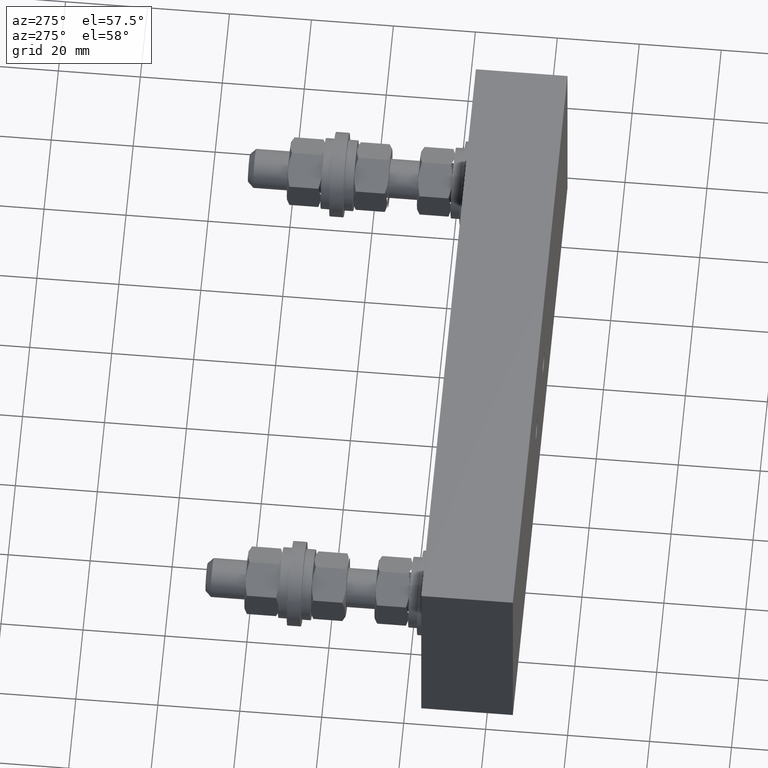
[diagram: clean part render]
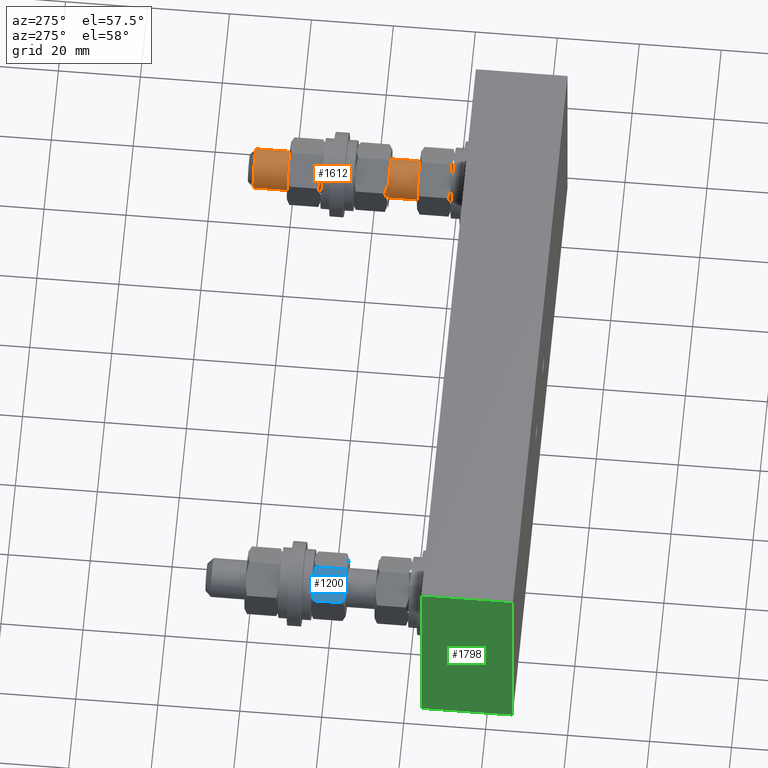
[diagram: same view with three faces highlighted in distinct colors, each labeled with its STEP entity id]
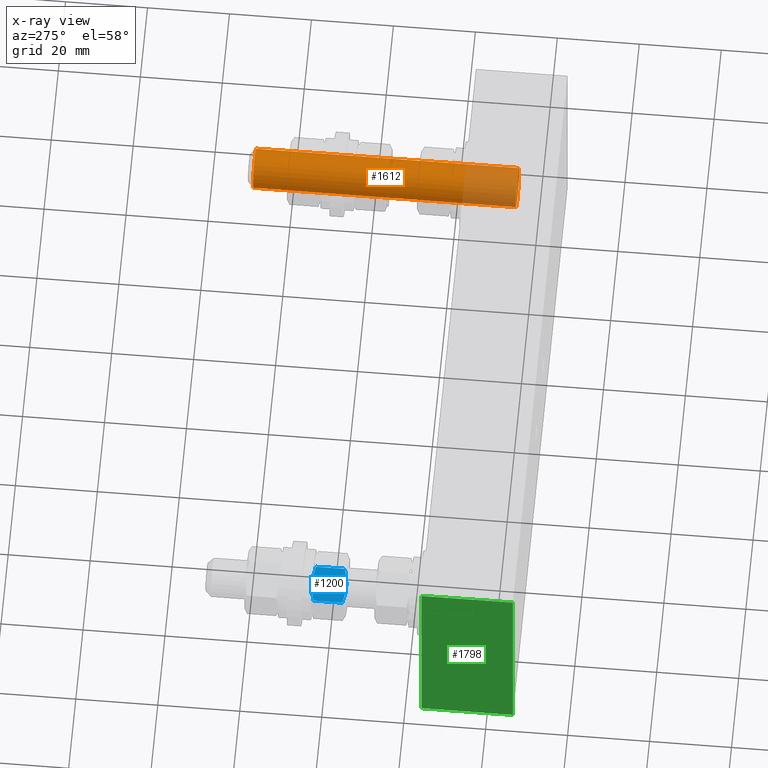
[diagram: x-ray of the same camera — body ghosted, the three highlighted faces saturated]
A machine part, auxiliary view with three faces highlighted in distinct colors.
The next image is the same camera in x-ray (body ghosted, the three faces saturated) — at least one of them is partly hidden behind the body in this view.
Their STEP definitions:

[orange] entity #1612 — the highlighted cylindrical surface (bore or boss wall) has radius 4.7625 mm, axis along (-0, -1, -0).
#124 = EDGE_LOOP ( 'NONE', ( #1744 ) ) ;
#411 = VERTEX_POINT ( 'NONE', #559 ) ;
#548 = EDGE_LOOP ( 'NONE', ( #2873 ) ) ;
#559 = CARTESIAN_POINT ( 'NONE',  ( 4.847500000000000100, 0.3318750000000001400, 1.040834085585814900E-017 ) ) ;
#607 = DIRECTION ( 'NONE',  ( 0.0000000000000000000, 0.0000000000000000000, -1.000000000000000000 ) ) ;
#1430 = DIRECTION ( 'NONE',  ( 9.678129627427201900E-031, 1.000000000000000000, 7.805279981897436400E-017 ) ) ;
#1612 = ADVANCED_FACE ( 'NONE', ( #6040, #7421 ), #6675, .T. ) ;
#1707 = CARTESIAN_POINT ( 'NONE',  ( 4.660000000000000100, 0.3318750000000001400, -2.693434729919641800E-030 ) ) ;
#1744 = ORIENTED_EDGE ( 'NONE', *, *, #3795, .F. ) ;
#2062 = DIRECTION ( 'NONE',  ( -9.678129627427203600E-031, -1.000000000000000000, -7.805279981897446200E-017 ) ) ;
#2247 = CIRCLE ( 'NONE', #4978, 0.1875000000000001400 ) ;
#2325 = DIRECTION ( 'NONE',  ( 1.000000000000000000, 0.0000000000000000000, 5.551115123125780200E-017 ) ) ;
#2477 = CARTESIAN_POINT ( 'NONE',  ( 4.660000000000000100, -2.238124999999999300, 3.414809992081220800E-017 ) ) ;
#2873 = ORIENTED_EDGE ( 'NONE', *, *, #4111, .T. ) ;
#3390 = VERTEX_POINT ( 'NONE', #5350 ) ;
#3445 = CIRCLE ( 'NONE', #4875, 0.1875000000000001100 ) ;
#3795 = EDGE_CURVE ( 'NONE', #411, #411, #3445, .T. ) ;
#4074 = AXIS2_PLACEMENT_3D ( 'NONE', #2477, #2062, #607 ) ;
#4111 = EDGE_CURVE ( 'NONE', #3390, #3390, #2247, .T. ) ;
#4875 = AXIS2_PLACEMENT_3D ( 'NONE', #1707, #5924, #2325 ) ;
#4978 = AXIS2_PLACEMENT_3D ( 'NONE', #4993, #1430, #5623 ) ;
#4993 = CARTESIAN_POINT ( 'NONE',  ( 4.660000000000000100, -2.191249999999999700, 3.780682491232658700E-017 ) ) ;
#5350 = CARTESIAN_POINT ( 'NONE',  ( 4.660000000000000100, -2.191249999999999700, -0.1875000000000001100 ) ) ;
#5623 = DIRECTION ( 'NONE',  ( 0.0000000000000000000, 0.0000000000000000000, -1.000000000000000000 ) ) ;
#5924 = DIRECTION ( 'NONE',  ( 9.721457635174948600E-031, 1.000000000000000000, -4.518854475494579400E-030 ) ) ;
#6040 = FACE_OUTER_BOUND ( 'NONE', #548, .T. ) ;
#6675 = CYLINDRICAL_SURFACE ( 'NONE', #4074, 0.1875000000000001400 ) ;
#7421 = FACE_OUTER_BOUND ( 'NONE', #124, .T. ) ;

[blue] entity #1200 — the highlighted planar face has unit normal (-0.5, -0, 0.866).
#163 = CARTESIAN_POINT ( 'NONE',  ( -0.2812499999999997800, -0.9411297632095829700, 0.1623797632095792500 ) ) ;
#181 = CARTESIAN_POINT ( 'NONE',  ( -0.1645473067611188400, -0.6387187491707515500, 0.2297580945662024100 ) ) ;
#301 = VERTEX_POINT ( 'NONE', #4364 ) ;
#337 = CARTESIAN_POINT ( 'NONE',  ( -0.09298809800177106100, -0.9633585106434163800, 0.2710728230064072300 ) ) ;
#412 = DIRECTION ( 'NONE',  ( 0.0000000000000000000, -1.000000000000000000, -3.491481338843133000E-015 ) ) ;
#446 = VECTOR ( 'NONE', #782, 39.37007874015748100 ) ;
#469 = CARTESIAN_POINT ( 'NONE',  ( -0.1166666464239665600, -0.6381250000000008300, 0.2574020067008344100 ) ) ;
#570 = CARTESIAN_POINT ( 'NONE',  ( -0.1406249999999998600, -0.6381250000000007200, 0.2435696448143713200 ) ) ;
#665 = EDGE_CURVE ( 'NONE', #4097, #2707, #3061, .T. ) ;
#782 = DIRECTION ( 'NONE',  ( 0.0000000000000000000, -1.000000000000000000, -3.491481338843133000E-015 ) ) ;
#789 = CARTESIAN_POINT ( 'NONE',  ( -0.1645833535760332900, -0.9662500000000009400, 0.2297372829279070200 ) ) ;
#806 = CARTESIAN_POINT ( 'NONE',  ( -0.2000398838390498000, -0.6427182716134752800, 0.2092664456360254800 ) ) ;
#934 = EDGE_CURVE ( 'NONE', #2457, #301, #7236, .T. ) ;
#941 = CARTESIAN_POINT ( 'NONE',  ( -0.04608535767091842500, -0.9550931338613537500, 0.2981521327621561900 ) ) ;
#1027 = DIRECTION ( 'NONE',  ( -0.4999999999999994400, -3.023711536277458200E-015, 0.8660254037844390400 ) ) ;
#1072 = CARTESIAN_POINT ( 'NONE',  ( -0.1406249999999998600, -0.6381250000000007200, 0.2435696448143713200 ) ) ;
#1198 = ORIENTED_EDGE ( 'NONE', *, *, #6832, .T. ) ;
#1200 = ADVANCED_FACE ( 'NONE', ( #2579 ), #2929, .T. ) ;
#1359 = EDGE_CURVE ( 'NONE', #2457, #7250, #4576, .T. ) ;
#1417 = CARTESIAN_POINT ( 'NONE',  ( -0.2583030458969128300, -0.6555962520893791100, 0.1756281933380795500 ) ) ;
#1550 = CARTESIAN_POINT ( 'NONE',  ( -2.212244502502349700E-016, -0.9411297632095836400, 0.3247595264191610000 ) ) ;
#1946 = B_SPLINE_CURVE_WITH_KNOTS ( 'NONE', 3,
 ( #2127, #3311, #3913, #337, #4530, #941, #5138, #1550 ),
 .UNSPECIFIED., .F., .F.,
 ( 4, 2, 2, 4 ),
 ( 0.004173502162683384100, 0.005212917775739006100, 0.006252333388794627200, 0.008331164614905873000 ),
 .UNSPECIFIED. ) ;
#1975 = AXIS2_PLACEMENT_3D ( 'NONE', #5147, #1027, #5264 ) ;
#1998 = CARTESIAN_POINT ( 'NONE',  ( -0.2812499999999997800, -0.9411297632095829700, 0.1623797632095792500 ) ) ;
#2127 = CARTESIAN_POINT ( 'NONE',  ( -0.1406249999999998600, -0.9662500000000008300, 0.2435696448143701600 ) ) ;
#2457 = VERTEX_POINT ( 'NONE', #6754 ) ;
#2579 = FACE_OUTER_BOUND ( 'NONE', #3065, .T. ) ;
#2663 = ORIENTED_EDGE ( 'NONE', *, *, #665, .T. ) ;
#2697 = EDGE_CURVE ( 'NONE', #2707, #301, #1946, .T. ) ;
#2707 = VERTEX_POINT ( 'NONE', #7495 ) ;
#2876 = CARTESIAN_POINT ( 'NONE',  ( -0.04617681570891576200, -0.6492597051385644600, 0.2980993294393000100 ) ) ;
#2929 = PLANE ( 'NONE',  #1975 ) ;
#3061 = B_SPLINE_CURVE_WITH_KNOTS ( 'NONE', 3,
 ( #163, #7371, #6160, #4379, #789, #4972 ),
 .UNSPECIFIED., .F., .F.,
 ( 4, 2, 4 ),
 ( 2.380732342992251500E-007, 0.002086870117958841700, 0.004173502162683384100 ),
 .UNSPECIFIED. ) ;
#3065 = EDGE_LOOP ( 'NONE', ( #6359, #7443, #1198, #3173, #2663, #3716 ) ) ;
#3173 = ORIENTED_EDGE ( 'NONE', *, *, #4563, .T. ) ;
#3311 = CARTESIAN_POINT ( 'NONE',  ( -0.1286906070470135700, -0.9662500000000009400, 0.2504599697983915200 ) ) ;
#3527 = VERTEX_POINT ( 'NONE', #3739 ) ;
#3716 = ORIENTED_EDGE ( 'NONE', *, *, #2697, .T. ) ;
#3739 = CARTESIAN_POINT ( 'NONE',  ( -0.2812499999999997800, -0.6632452367904180200, 0.1623797632095802200 ) ) ;
#3913 = CARTESIAN_POINT ( 'NONE',  ( -0.1167026932388810400, -0.9656562508292500000, 0.2573811950625388700 ) ) ;
#4097 = VERTEX_POINT ( 'NONE', #1998 ) ;
#4228 = VECTOR ( 'NONE', #412, 39.37007874015748100 ) ;
#4364 = CARTESIAN_POINT ( 'NONE',  ( -2.212244502502349700E-016, -0.9411297632095836400, 0.3247595264191610000 ) ) ;
#4374 = CARTESIAN_POINT ( 'NONE',  ( -0.2812499999999997800, -0.6381250000000005000, 0.1623797632095803100 ) ) ;
#4379 = CARTESIAN_POINT ( 'NONE',  ( -0.1882438658990678300, -0.9638559033525117000, 0.2160768797690386100 ) ) ;
#4394 = CARTESIAN_POINT ( 'NONE',  ( -0.1882619019982287300, -0.6410164893565846200, 0.2160664666223338900 ) ) ;
#4530 = CARTESIAN_POINT ( 'NONE',  ( -0.08121011616094998800, -0.9616567283865262700, 0.2778728439927157800 ) ) ;
#4563 = EDGE_CURVE ( 'NONE', #3527, #4097, #6823, .T. ) ;
#4576 = B_SPLINE_CURVE_WITH_KNOTS ( 'NONE', 3,
 ( #7020, #5914, #2876, #7638, #469, #1072 ),
 .UNSPECIFIED., .F., .F.,
 ( 4, 2, 4 ),
 ( 2.380732343002437400E-007, 0.002086870117958838700, 0.004173502162683377100 ),
 .UNSPECIFIED. ) ;
#4972 = CARTESIAN_POINT ( 'NONE',  ( -0.1406249999999998600, -0.9662500000000008300, 0.2435696448143701600 ) ) ;
#4984 = CARTESIAN_POINT ( 'NONE',  ( -0.2351646423290814400, -0.6492818661386476900, 0.1889871568665852100 ) ) ;
#5051 = B_SPLINE_CURVE_WITH_KNOTS ( 'NONE', 3,
 ( #6784, #7388, #181, #4394, #806, #4984, #1417, #5610 ),
 .UNSPECIFIED., .F., .F.,
 ( 4, 2, 2, 4 ),
 ( 0.004173502162683377100, 0.005212917775739000900, 0.006252333388794625500, 0.008331164614905874800 ),
 .UNSPECIFIED. ) ;
#5138 = CARTESIAN_POINT ( 'NONE',  ( -0.02294695410308719400, -0.9487787479106231100, 0.3115110962906618200 ) ) ;
#5147 = CARTESIAN_POINT ( 'NONE',  ( -2.212244502502349700E-016, -0.6381250000000011600, 0.3247595264191620600 ) ) ;
#5264 = DIRECTION ( 'NONE',  ( -0.8660254037844389300, 1.745740669421564700E-015, -0.4999999999999993900 ) ) ;
#5610 = CARTESIAN_POINT ( 'NONE',  ( -0.2812499999999997800, -0.6632452367904180200, 0.1623797632095802200 ) ) ;
#5914 = CARTESIAN_POINT ( 'NONE',  ( -0.02300438821601185100, -0.6555771073850611400, 0.3114779366901050900 ) ) ;
#6160 = CARTESIAN_POINT ( 'NONE',  ( -0.2350731842910843400, -0.9551152948614372000, 0.1890399601894414700 ) ) ;
#6359 = ORIENTED_EDGE ( 'NONE', *, *, #934, .F. ) ;
#6754 = CARTESIAN_POINT ( 'NONE',  ( -2.223645274983546800E-016, -0.6632452367904185800, 0.3247595264191619500 ) ) ;
#6784 = CARTESIAN_POINT ( 'NONE',  ( -0.1406249999999998600, -0.6381250000000007200, 0.2435696448143713200 ) ) ;
#6823 = LINE ( 'NONE', #4374, #446 ) ;
#6832 = EDGE_CURVE ( 'NONE', #7250, #3527, #5051, .T. ) ;
#7020 = CARTESIAN_POINT ( 'NONE',  ( -2.223645274983546800E-016, -0.6632452367904185800, 0.3247595264191619500 ) ) ;
#7236 = LINE ( 'NONE', #7586, #4228 ) ;
#7250 = VERTEX_POINT ( 'NONE', #570 ) ;
#7371 = CARTESIAN_POINT ( 'NONE',  ( -0.2582456117839880800, -0.9487978926149405200, 0.1756613529386361600 ) ) ;
#7388 = CARTESIAN_POINT ( 'NONE',  ( -0.1525593929529862600, -0.6381250000000002800, 0.2366793198303498400 ) ) ;
#7443 = ORIENTED_EDGE ( 'NONE', *, *, #1359, .T. ) ;
#7495 = CARTESIAN_POINT ( 'NONE',  ( -0.1406249999999998600, -0.9662500000000008300, 0.2435696448143701600 ) ) ;
#7586 = CARTESIAN_POINT ( 'NONE',  ( -2.212244502502349700E-016, -0.6381250000000011600, 0.3247595264191620600 ) ) ;
#7638 = CARTESIAN_POINT ( 'NONE',  ( -0.09300613410093207200, -0.6405190966474896300, 0.2710624098597027000 ) ) ;

[green] entity #1798 — the highlighted planar face has unit normal (1, 0, 0).
#110 = CARTESIAN_POINT ( 'NONE',  ( -0.6700000000000002600, -2.613125000000000100, 1.000000000000000000 ) ) ;
#254 = EDGE_LOOP ( 'NONE', ( #4723, #3966, #5718, #6717 ) ) ;
#740 = DIRECTION ( 'NONE',  ( -0.0000000000000000000, -0.0000000000000000000, -1.000000000000000000 ) ) ;
#1089 = AXIS2_PLACEMENT_3D ( 'NONE', #3557, #2385, #1815 ) ;
#1756 = CARTESIAN_POINT ( 'NONE',  ( -0.6700000000000002600, -2.613125000000000100, -1.000000000000000000 ) ) ;
#1798 = ADVANCED_FACE ( 'NONE', ( #5263 ), #7304, .F. ) ;
#1815 = DIRECTION ( 'NONE',  ( 0.0000000000000000000, 0.0000000000000000000, -1.000000000000000000 ) ) ;
#1922 = VERTEX_POINT ( 'NONE', #3136 ) ;
#2013 = DIRECTION ( 'NONE',  ( -0.0000000000000000000, -0.0000000000000000000, -1.000000000000000000 ) ) ;
#2140 = LINE ( 'NONE', #6560, #3521 ) ;
#2363 = DIRECTION ( 'NONE',  ( -0.0000000000000000000, -1.000000000000000000, -0.0000000000000000000 ) ) ;
#2385 = DIRECTION ( 'NONE',  ( 1.000000000000000000, 0.0000000000000000000, 0.0000000000000000000 ) ) ;
#2455 = CARTESIAN_POINT ( 'NONE',  ( -0.6700000000000002600, -1.733125000000000000, 1.000000000000000000 ) ) ;
#2596 = VERTEX_POINT ( 'NONE', #5055 ) ;
#2907 = VECTOR ( 'NONE', #740, 39.37007874015748100 ) ;
#2987 = DIRECTION ( 'NONE',  ( -0.0000000000000000000, -1.000000000000000000, -0.0000000000000000000 ) ) ;
#3136 = CARTESIAN_POINT ( 'NONE',  ( -0.6700000000000002600, -1.733125000000000000, -1.000000000000000000 ) ) ;
#3521 = VECTOR ( 'NONE', #2987, 39.37007874015748100 ) ;
#3557 = CARTESIAN_POINT ( 'NONE',  ( -0.6700000000000002600, -2.613125000000000100, 1.000000000000000000 ) ) ;
#3706 = LINE ( 'NONE', #1756, #6741 ) ;
#3770 = CARTESIAN_POINT ( 'NONE',  ( -0.6700000000000002600, -1.733125000000000000, 1.000000000000000000 ) ) ;
#3840 = LINE ( 'NONE', #3770, #5284 ) ;
#3966 = ORIENTED_EDGE ( 'NONE', *, *, #4590, .F. ) ;
#4446 = EDGE_CURVE ( 'NONE', #1922, #2596, #3706, .T. ) ;
#4495 = EDGE_CURVE ( 'NONE', #5609, #5134, #2140, .T. ) ;
#4590 = EDGE_CURVE ( 'NONE', #5134, #2596, #7472, .T. ) ;
#4723 = ORIENTED_EDGE ( 'NONE', *, *, #4446, .T. ) ;
#5055 = CARTESIAN_POINT ( 'NONE',  ( -0.6700000000000002600, -2.613125000000000100, -1.000000000000000000 ) ) ;
#5134 = VERTEX_POINT ( 'NONE', #6743 ) ;
#5263 = FACE_OUTER_BOUND ( 'NONE', #254, .T. ) ;
#5284 = VECTOR ( 'NONE', #2013, 39.37007874015748100 ) ;
#5609 = VERTEX_POINT ( 'NONE', #2455 ) ;
#5718 = ORIENTED_EDGE ( 'NONE', *, *, #4495, .F. ) ;
#6560 = CARTESIAN_POINT ( 'NONE',  ( -0.6700000000000002600, -2.613125000000000100, 1.000000000000000000 ) ) ;
#6717 = ORIENTED_EDGE ( 'NONE', *, *, #6860, .T. ) ;
#6741 = VECTOR ( 'NONE', #2363, 39.37007874015748100 ) ;
#6743 = CARTESIAN_POINT ( 'NONE',  ( -0.6700000000000002600, -2.613125000000000100, 1.000000000000000000 ) ) ;
#6860 = EDGE_CURVE ( 'NONE', #5609, #1922, #3840, .T. ) ;
#7304 = PLANE ( 'NONE',  #1089 ) ;
#7472 = LINE ( 'NONE', #110, #2907 ) ;